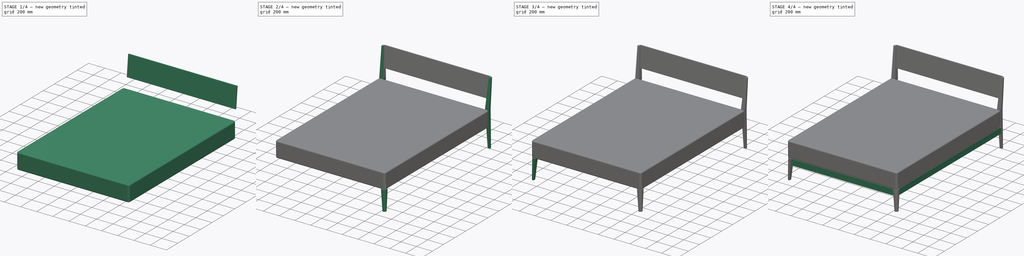
[diagram: build sequence overview — one tinted view per stage of 4, left to right]
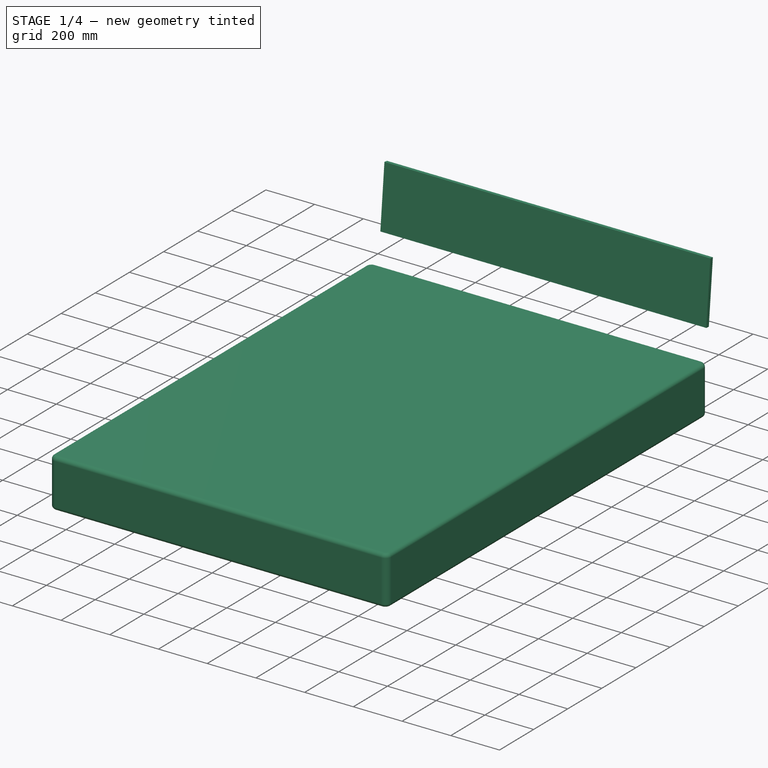
[diagram: stage 1 of 4 — iso view after this stage's code; geometry added in this stage tinted green]
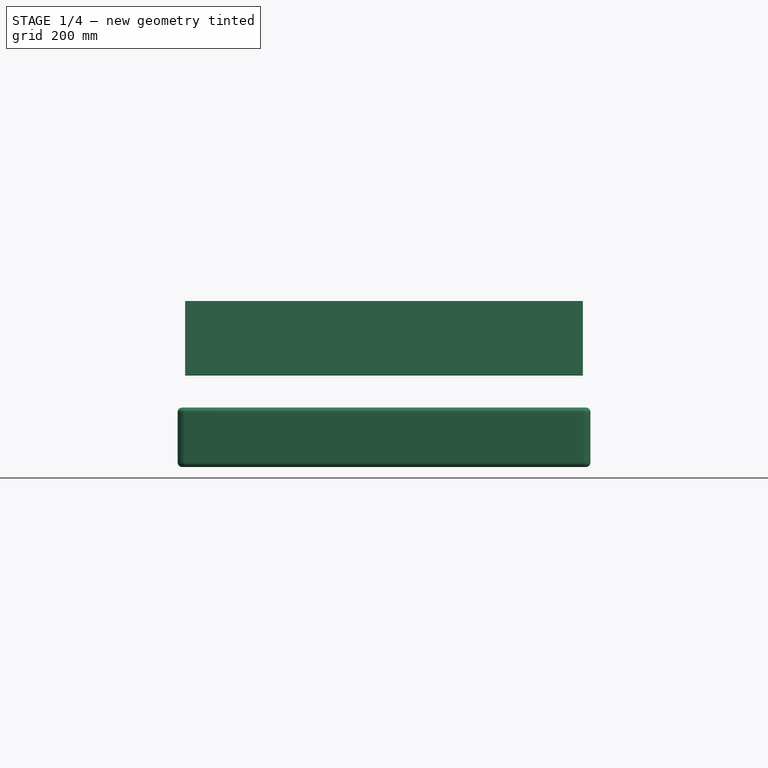
[diagram: stage 1 of 4 — front view after this stage's code; geometry added in this stage tinted green]
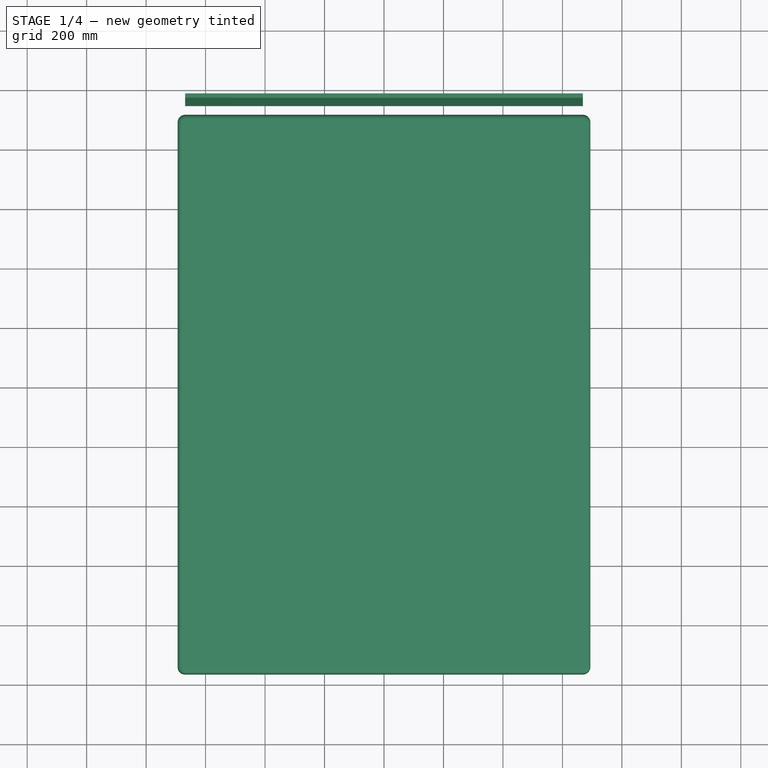
[diagram: stage 1 of 4 — top view after this stage's code; geometry added in this stage tinted green]
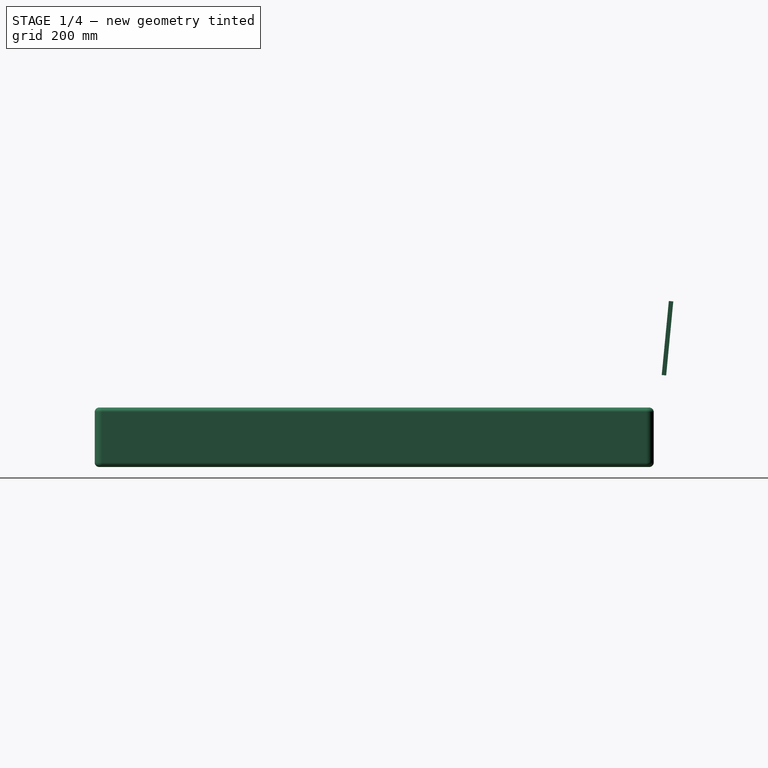
[diagram: stage 1 of 4 — right view after this stage's code; geometry added in this stage tinted green]
FCSTD DOCUMENT  (FreeCAD 1.0R38641 +468 (Git))
Label: Beds_R02
License: All rights reserved
LicenseURL: https://en.wikipedia.org/wiki/All_rights_reserved
objects: Sketcher::SketchObject×15, App::DocumentObjectGroup×15, App::MaterialObjectPython×9, App::FeaturePython×5, Part::Extrusion×4, Part::Loft×4, App::TextDocument×4, Part::Compound×2, Part::Part2DObjectPython×2, Spreadsheet::Sheet×1, App::VarSet×1, Part::Fillet×1, App::DocumentObjectGroupPython×1
note: 48 computed .brp shape members not serialized (recipe doc carries the construction recipe); baked Part::Feature solids carry a one-line shape summary decoded from their .brp

FEATURE [Sketcher::SketchObject] Sketch022  label="Double bed_move_rotate_#_"
  ArcFitTolerance = 0
  FullyConstrained = true
  MakeInternals = false
  expr: .Constraints.Length = VarSet.Base_dimensions_B_Length
  expr: .Constraints.Width = VarSet.Base_dimensions_B_Width
  expr: Label = VarSet.A_Component_Label + <<_move_rotate_#_>>
  sketch-geometry (12):
    g0: LineSegment StartX=-694 StartY=965 StartZ=0 EndX=694 EndY=965 EndZ=0
    g1: LineSegment StartX=694 StartY=965 StartZ=0 EndX=694 EndY=-965 EndZ=0
    g2: LineSegment StartX=694 StartY=-965 StartZ=0 EndX=-694 EndY=-965 EndZ=0
    g3: LineSegment StartX=-694 StartY=-965 StartZ=0 EndX=-694 EndY=965 EndZ=0
    g4: LineSegment [constr] StartX=-794 StartY=1065 StartZ=0 EndX=794 EndY=1065 EndZ=0
    g5: LineSegment [constr] StartX=794 StartY=1065 StartZ=0 EndX=794 EndY=-1065 EndZ=0
    g6: LineSegment [constr] StartX=794 StartY=-1065 StartZ=0 EndX=-794 EndY=-1065 EndZ=0
    g7: LineSegment [constr] StartX=-794 StartY=-1065 StartZ=0 EndX=-794 EndY=1065 EndZ=0
    g8: LineSegment StartX=-794 StartY=0 StartZ=0 EndX=794 EndY=0 EndZ=0
    g9: LineSegment StartX=0 StartY=1065 StartZ=0 EndX=0 EndY=-1065 EndZ=0
    g10: Circle CenterX=0 CenterY=0 CenterZ=0 NormalX=0 NormalY=0 NormalZ=1 AngleXU=0 Radius=50
    g11: LineSegment StartX=-694 StartY=915 StartZ=0 EndX=694 EndY=915 EndZ=0
  constraints (34):
    c: Coincident(g0,g1)
    c: Coincident(g1,g2)
    c: Coincident(g2,g3)
    c: Coincident(g3,g0)
    c: Horizontal(g2)
    c: Vertical(g1)
    c: DistanceX(g2,g2) = 1388  'Width'
    c: DistanceY(g3,g3) = 1930  'Length'
    c: Symmetric(g0,g0,g-2)
    c: Symmetric(g0,g2,g-1)
    c: Coincident(g4,g5)
    c: Coincident(g5,g6)
    c: Coincident(g6,g7)
    c: Coincident(g7,g4)
    c: Horizontal(g6)
    c: Vertical(g7)
    c: Symmetric(g4,g5,g-1)
    c: Symmetric(g4,g4,g-2)
    c: DistanceY(g0,g4) = 100
    c: DistanceX(g0,g4) = 100
    c: PointOnObject(g8,g7)
    c: PointOnObject(g8,g5)
    c: Horizontal(g8)
    c: PointOnObject(g9,g4)
    c: PointOnObject(g9,g6)
    c: Vertical(g9)
    c: PointOnObject(g8,g-1)
    c: PointOnObject(g9,g-2)
    c: Coincident(g10,g-1)
    c: Diameter(g10) = 100
    c: PointOnObject(g11,g3)
    c: PointOnObject(g11,g1)
    c: Horizontal(g11)
    c: DistanceY(g11,g0) = 50
FEATURE [Spreadsheet::Sheet] Spreadsheet003  label="Double bed_description_quantities_#_"
  cells = A1='Description:; A2==<<%s>> % VarSet.A_Component_Label + << of %s x %s x %s>> % tuple(VarSet.Base_dimensions_B_Length; VarSet.Base_dimensions_B_Width; VarSet.Mattress_B_Height_floor) + << in length, width and height, compound of mattress of %s>> % VarSet.Mattress_C_Material.Label + <<, headboard of %s>> % VarSet.Headboard_C_Material.Label + << and feet of %s>> % VarSet.Feet_C_Material.Label + <<.>>; A4='Parts; B4='L; C4='H; D4='W; E4='T; F4='A; G4='Materials; H4='Quantities; A5='01-Mattress; B5==VarSet.Base_dimensions_B_Length - 50 mm; D5==VarSet.Base_dimensions_B_Width; E5==VarSet.Mattress_B_Thickness; F5==Extrude039021.Area; G5==VarSet.Mattress_C_Material.Label; H5=1; A6='02-Headboard; C6==VarSet.Headboard_B_Height; D6==VarSet.Base_dimensions_B_Width - 80 mm; E6==Sketch.Constraints.Thickness; F6==Extrude.Area; G6==VarSet.Headboard_C_Material.Label; H6=1; A7='03-Foot frames; B7==(VarSet.Base_dimensions_B_Width - 60 mm) * 2 + (VarSet.Base_dimensions_B_Length - 60 mm) * 2; C7==Sketch259.Constraints.Height_01; E7==Sketch259.Constraints.Thickness_01; G7==VarSet.Foot_frames_C_Material.Label; H7=4; A8='04-Feet; C8==VarSet.Mattress_B_Height_floor - VarSet.Mattress_B_Thickness; E8==<<from %s>> % Sketch257.Constraints.Thickness + << to %s>> % Sketch258.Constraints.Thickness; G8==VarSet.Feet_C_Material.Label; H8=4
  expr: Label = VarSet.A_Component_Label + <<_description_quantities_#_>>
FEATURE [Sketcher::SketchObject] Sketch255  label="Sketch032_Bottom_panel"
  ArcFitTolerance = 0
  AttachmentSupport = -> [Sketch022]
  ExternalGeometry = -> [Sketch022]
  FullyConstrained = true
  MakeInternals = false
  MapMode = 2
  expr: .Constraints.Radius = VarSet.Mattress_B_Radius_fillet
  sketch-geometry (8):
    g0: LineSegment StartX=694 StartY=890 StartZ=0 EndX=694 EndY=-940 EndZ=0
    g1: LineSegment StartX=669 StartY=-965 StartZ=0 EndX=-669 EndY=-965 EndZ=0
    g2: LineSegment StartX=-694 StartY=-940 StartZ=0 EndX=-694 EndY=890 EndZ=0
    g3: ArcOfCircle CenterX=-669 CenterY=-940 CenterZ=0 NormalX=0 NormalY=0 NormalZ=1 AngleXU=0 Radius=25 StartAngle=3.14159 EndAngle=4.71239
    g4: ArcOfCircle CenterX=669 CenterY=-940 CenterZ=0 NormalX=0 NormalY=0 NormalZ=1 AngleXU=0 Radius=25 StartAngle=4.71239 EndAngle=6.28319
    g5: LineSegment StartX=-669 StartY=915 StartZ=0 EndX=669 EndY=915 EndZ=0
    g6: ArcOfCircle CenterX=-669 CenterY=890 CenterZ=0 NormalX=0 NormalY=0 NormalZ=1 AngleXU=0 Radius=25 StartAngle=1.5708 EndAngle=3.14159
    g7: ArcOfCircle CenterX=669 CenterY=890 CenterZ=0 NormalX=0 NormalY=0 NormalZ=1 AngleXU=0 Radius=25 StartAngle=-2.7e-15 EndAngle=1.5708
  constraints (20):
    c: Horizontal(g1)
    c: Vertical(g0)
    c: Vertical(g2)
    c: Tangent(g2,g3) = 1.5708
    c: Tangent(g1,g3) = 1.5708
    c: Tangent(g1,g4) = 1.5708
    c: Tangent(g0,g4) = 1.5708
    c: PointOnObject(g0,g-4)
    c: Horizontal(g1,g-4)
    c: Radius(g4) = 25  'Radius'
    c: Equal(g3,g4)
    c: Horizontal(g5)
    c: Tangent(g2,g6) = 1.5708
    c: Tangent(g5,g6) = 1.5708
    c: Tangent(g5,g7) = 1.5708
    c: Tangent(g0,g7) = 1.5708
    c: Equal(g6,g7)
    c: Equal(g7,g4)
    c: PointOnObject(g2,g-3)
    c: DistanceY(g5,g-4) = 50
FEATURE [Part::Extrusion] Extrude039021  label="01-Seat_"
  Area = 2.6089e+06
  Base = -> Sketch255
  Dir = (0,0,1)
  DirMode = 2
  FaceMakerClass = Part::FaceMakerBullseye
  FaceMakerMode = 3
  LengthFwd = 200
  LengthRev = 0
  Placement = pos=(0,0,250) rot=(0,0,1;0rad)
  Solid = true
  Symmetric = false
  expr: .Placement.Base.z = VarSet.Mattress_B_Height_floor - VarSet.Mattress_B_Thickness
  expr: Area = .Shape.Face9.Area
  expr: LengthFwd = VarSet.Mattress_B_Thickness <= VarSet.Mattress_B_Radius_fillet ? VarSet.Mattress_B_Radius_fillet : VarSet.Mattress_B_Thickness
FEATURE [App::MaterialObjectPython] Material051  label="white ceramic generic"  # material (typed FeaturePython)
  Description = A standard ceramic
  Material = AuthorAndLicense=(c) 2015 Bernd Hahnebach (CC-BY 3.0); CardName=Wood-Generic; Color=(0.8, 0.8, 0.8, 1.0); Density=700 kg/m^3; Description=A standard ceramic; DiffuseColor=(1.0, 1.0, 1.0); Father=Aggregate; Name=white ceramic generic; PoissonRatio=0.05; ProductURL=https://en.wikipedia.org/wiki/Wood; SectionColor=(0.8, 0.8, 0.8, 1.0); Transparency=0; ViewColor=(0.8, 0.8, 0.8, 1.0); YoungsModulus=12000 MPa
  Transparency = 0
FEATURE [App::DocumentObjectGroup] Group303  label="Ceramic_"
  Group = -> [Material051]
FEATURE [App::MaterialObjectPython] Material054  label="black granit generic"  # material (typed FeaturePython)
  Material = AuthorAndLicense=Uwe Stöhr; CardName=Iron-Generic; Color=(0.8, 0.8, 0.8, 1.0); Density=7874 kg/m^3; DiffuseColor=(0.10196078568696976, 0.10196078568696976, 0.10196078568696976); ElectricalConductivity=10.3 MS/m; Father=Metal; KindOfMaterial=Iron; Name=black granit generic; PoissonRatio=0.29; RelativePermeability=5000.0; SectionColor=(0.8, 0.8, 0.8, 1.0); ShearModulus=82.0 GPa; SpecificHeat=460.5 J/kg/K; ThermalConductivity=80.4 W/m/K; ThermalExpansionCoefficient=11.8 µm/m/K; Transparency=0; UltimateTensileStrength=497 MPa; ViewColor=(0.8, 0.8, 0.8, 1.0); YieldStrength=428 MPa; YoungsModulus=211 GPa
  Transparency = 0
FEATURE [App::MaterialObjectPython] Material055  label="white Formica generic"  # material (typed FeaturePython)
  Description = A standard ceramic
  Material = AuthorAndLicense=(c) 2015 Bernd Hahnebach (CC-BY 3.0); CardName=Wood-Generic; Color=(0.8, 0.8, 0.8, 1.0); Density=700 kg/m^3; Description=A standard ceramic; DiffuseColor=(1.0, 1.0, 1.0); Father=Aggregate; Name=white Formica generic; PoissonRatio=0.05; ProductURL=https://en.wikipedia.org/wiki/Wood; SectionColor=(0.8, 0.8, 0.8, 1.0); Transparency=0; ViewColor=(0.8, 0.8, 0.8, 1.0); YoungsModulus=12000 MPa
  ProductURL = https://en.wikipedia.org/wiki/Wood
  Transparency = 0
FEATURE [Part::Extrusion] Extrude  label="02-Headboard_"
  Area = 334500
  Base = -> Sketch
  Dir = (0,0.0958458,0.995396)
  DirMode = 2
  FaceMakerClass = Part::FaceMakerBullseye
  FaceMakerMode = 3
  LengthFwd = 250
  LengthRev = 0
  Material = -> Material055
  Solid = true
  Symmetric = false
  expr: Area = .Shape.Face3.Area
  expr: LengthFwd = VarSet.Headboard_B_Height
  expr: Material = VarSet.Headboard_C_Material
  expr: Visibility = VarSet.Visualization_A_Visualization
FEATURE [App::DocumentObjectGroup] Group224  label="Wood_"
  Group = -> [Material053,Material055]
FEATURE [App::MaterialObjectPython] Material056  label="white marble generic_"  # material (typed FeaturePython)
  Material = AuthorAndLicense=Uwe Stöhr; CardName=Iron-Generic; Color=(0.8, 0.8, 0.8, 1.0); Density=7874 kg/m^3; DiffuseColor=(1.0, 1.0, 1.0); ElectricalConductivity=10.3 MS/m; Father=Metal; KindOfMaterial=Iron; Name=white marble generic_; PoissonRatio=0.29; RelativePermeability=5000.0; SectionColor=(0.8, 0.8, 0.8, 1.0); ShearModulus=82.0 GPa; SpecificHeat=460.5 J/kg/K; ThermalConductivity=80.4 W/m/K; ThermalExpansionCoefficient=11.8 µm/m/K; Transparency=0; UltimateTensileStrength=497 MPa; ViewColor=(0.8, 0.8, 0.8, 1.0); YieldStrength=428 MPa; YoungsModulus=211 GPa
  Transparency = 0
FEATURE [App::DocumentObjectGroup] Group302  label="Stone_"
  Group = -> [Material054,Material056]
FEATURE [App::MaterialObjectPython] Material057  label="white fabric generic"  # material (typed FeaturePython)
  Description = A standard fabric
  Material = AuthorAndLicense=(c) 2015 Bernd Hahnebach (CC-BY 3.0); CardName=Wood-Generic; Color=(0.8, 0.8, 0.8, 1.0); Density=700 kg/m^3; Description=A standard fabric; DiffuseColor=(1.0, 1.0, 1.0); Father=Aggregate; Name=white fabric generic; PoissonRatio=0.05; ProductURL=https://en.wikipedia.org/wiki/Wood; SectionColor=(0.8, 0.8, 0.8, 1.0); Transparency=0; ViewColor=(0.8, 0.8, 0.8, 1.0); YoungsModulus=12000 MPa
  Transparency = 0
FEATURE [App::VarSet] VarSet  label="01-Prop_Bed_configurations_#_"
  A_Component_Label = Double bed
  Base_dimensions_B_Length = 1930
  Base_dimensions_B_Width = 1388
  Feet_C_Material = -> Material053
  Foot_frames_B_Height = 75
  Foot_frames_B_Thickness = 20
  Foot_frames_C_Material = -> Material053
  Headboard_B_Height = 250
  Headboard_B_Support_height = 800
  Headboard_B_Thickness = 15
  Headboard_C_Material = -> Material055
  Mattress_B_Height_floor = 450
  Mattress_B_Radius_fillet = 25
  Mattress_B_Thickness = 200
  Mattress_C_Material = -> Material057
  Visualization_A_Visualization = true
FEATURE [Part::Fillet] Fillet  label="01-Mattress"
  Base = -> Extrude039021
  EdgeLinks = -> Extrude039021 [Edge3,Edge4,Edge6,Edge7,Edge9,Edge10,Edge12,Edge13,Edge15,Edge16,Edge18,Edge19,Edge21,Edge22,Edge23,Edge24]
  Edges = 16 edges r=15: [Edge3,Edge4,Edge6,Edge7,Edge9,Edge10,Edge12,Edge13,Edge15,Edge16,Edge18,Edge19,Edge21,Edge22,Edge23,Edge24]
  Material = -> Material057
  expr: Material = VarSet.Mattress_C_Material
  expr: Visibility = VarSet.Visualization_A_Visualization
FEATURE [App::DocumentObjectGroup] Group248  label="03-Component_parts_"
  Group = -> [Fillet,Extrude,Compound,Compound001]
FEATURE [App::FeaturePython] Section  label="Section_Plan_01"  # WARN: FeaturePython — macro-defined, semantics opaque (R4)
  AttacherType = Attacher::AttachEngine3D
  AttachmentOffset = pos=(0,0,1500) rot=(0,0,1;0rad)
  AttachmentSupport = -> [Sketch022]
  Clip = false
  Depth = 0
  MapMode = 2
  Objects = -> [Group248]
  OnlySolids = true
  Placement = pos=(0,0,1500) rot=(0,0,1;0rad)
  UseMaterialColorForFill = false
FEATURE [App::FeaturePython] Section002  label="Section002_Lateral_01"  # WARN: FeaturePython — macro-defined, semantics opaque (R4)
  AttacherType = Attacher::AttachEngine3D
  AttachmentOffset = pos=(0,600,1500) rot=(0,0,1;0rad)
  AttachmentSupport = -> [Sketch022]
  Clip = false
  Depth = 0
  MapMode = 4
  Objects = -> [Group248]
  OnlySolids = true
  Placement = pos=(1500,0,600) rot=(0.57735,0.57735,0.57735;2.0944rad)
  UseMaterialColorForFill = false
FEATURE [App::FeaturePython] Section003  label="Section003_Transversal"  # WARN: FeaturePython — macro-defined, semantics opaque (R4)
  AttacherType = Attacher::AttachEngine3D
  AttachmentOffset = pos=(0,600,0) rot=(0,0,1;0rad)
  AttachmentSupport = -> [Sketch022]
  Clip = false
  Depth = 0
  MapMode = 4
  Objects = -> [Group248]
  OnlySolids = true
  Placement = pos=(0,0,600) rot=(0.57735,0.57735,0.57735;2.0944rad)
  UseMaterialColorForFill = false
FEATURE [App::FeaturePython] Section004  label="Section004_Lateral_02"  # WARN: FeaturePython — macro-defined, semantics opaque (R4)
  AttacherType = Attacher::AttachEngine3D
  AttachmentOffset = pos=(0,600,1500) rot=(0,0,1;0rad)
  AttachmentSupport = -> [Sketch022]
  Clip = false
  Depth = 0
  MapMode = 4
  Objects = -> [Group248]
  OnlySolids = true
  Placement = pos=(-1500,0,600) rot=(0.57735,-0.57735,-0.57735;2.0944rad)
  UseMaterialColorForFill = false
FEATURE [App::FeaturePython] Section005  label="Section005_Frontal_"  # WARN: FeaturePython — macro-defined, semantics opaque (R4)
  AttacherType = Attacher::AttachEngine3D
  AttachmentOffset = pos=(0,600,1500) rot=(0,0,1;0rad)
  AttachmentSupport = -> [Sketch022]
  Clip = false
  Depth = 0
  MapMode = 3
  Objects = -> [Group248]
  OnlySolids = true
  Placement = pos=(0,-1500,600) rot=(1,0,0;1.5708rad)
  UseMaterialColorForFill = false
FEATURE [Part::Part2DObjectPython] Shape2DView  label="Plan_Double bed_#_"  # Draft 2D object (typed FeaturePython)
  AutoUpdate = true
  Base = -> Section
  Clip = false
  FuseArch = false
  HiddenLines = false
  InPlace = true
  OnlySolids = false
  Projection = (0,0,1)
  ProjectionMode = 0
  SegmentLength = 0.05
  Tessellation = false
  VisibleOnly = false
  expr: Label = <<Plan_>> + VarSet.A_Component_Label + <<_#_>>
FEATURE [App::DocumentObjectGroup] Group293  label="06-Drawings_2D_"
  Group = -> [Shape2DView]
FEATURE [App::DocumentObjectGroup] Group304  label="Fabric_"
  Group = -> [Material057]
FEATURE [App::DocumentObjectGroupPython] MaterialContainer  label="02-Materials"  # scripted group (container) (typed FeaturePython)
  Group = -> [Group303,Group304,Group230,Group229,Group302,Group224]
FEATURE [App::DocumentObjectGroup] Group251  label="08-Materials_bed_#_"
  Group = -> [MaterialContainer]
FEATURE [Part::Part2DObjectPython] Shape2DView001  label="Plan_Double bed"  # Draft 2D object (typed FeaturePython)
  AutoUpdate = true
  Base = -> Section
  Clip = false
  FuseArch = false
  HiddenLines = false
  InPlace = true
  OnlySolids = false
  Projection = (0.443249,-0.726152,0.52558)
  ProjectionMode = 0
  SegmentLength = 0.05
  Tessellation = false
  VisibleOnly = false
  expr: Label = <<Plan_>> + VarSet.A_Component_Label
FEATURE [App::DocumentObjectGroup] Group002  label="09-Sections_plan_#_"
  Group = -> [Section,Section002,Section003,Section004,Section005,Shape2DView001]
FEATURE [App::DocumentObjectGroup] Group286  label="Double bed_#_"
  Group = -> [VarSet,Group292,Group248,Group249,Group250,Group293,Group,Group251,Group002]
  expr: Label = VarSet.A_Component_Label + <<_#_>>
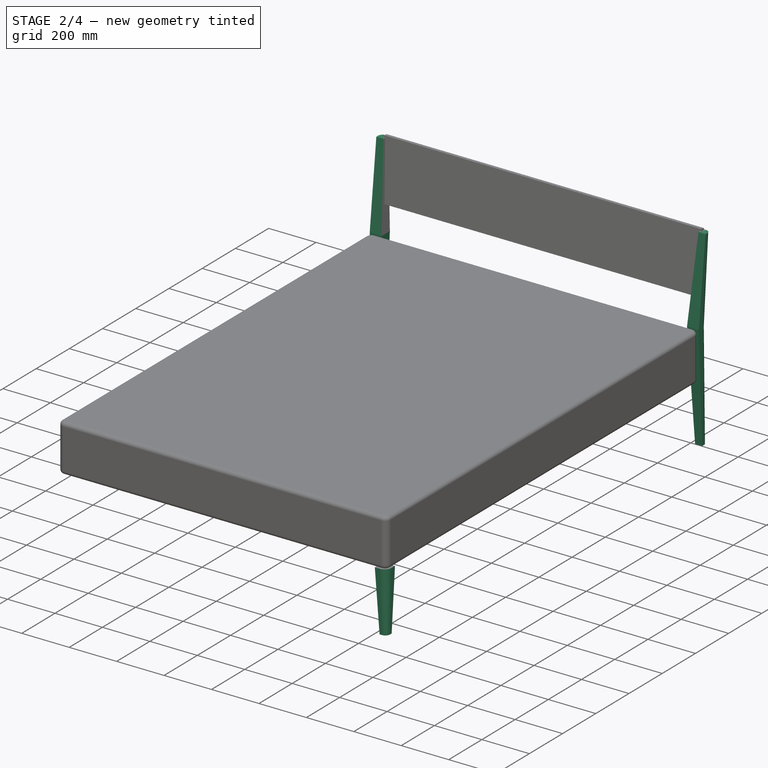
[diagram: stage 2 of 4 — iso view after this stage's code; geometry added in this stage tinted green]
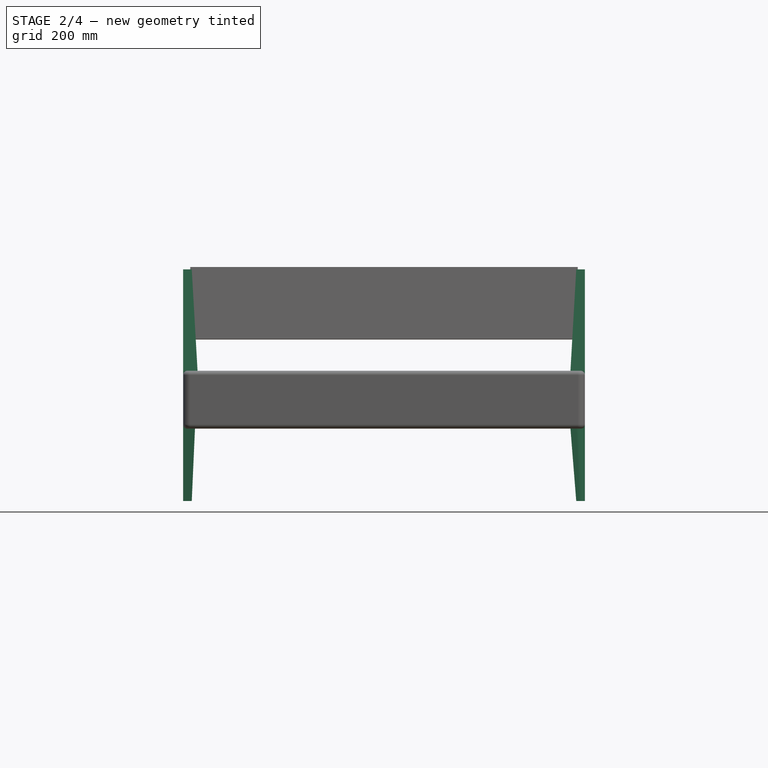
[diagram: stage 2 of 4 — front view after this stage's code; geometry added in this stage tinted green]
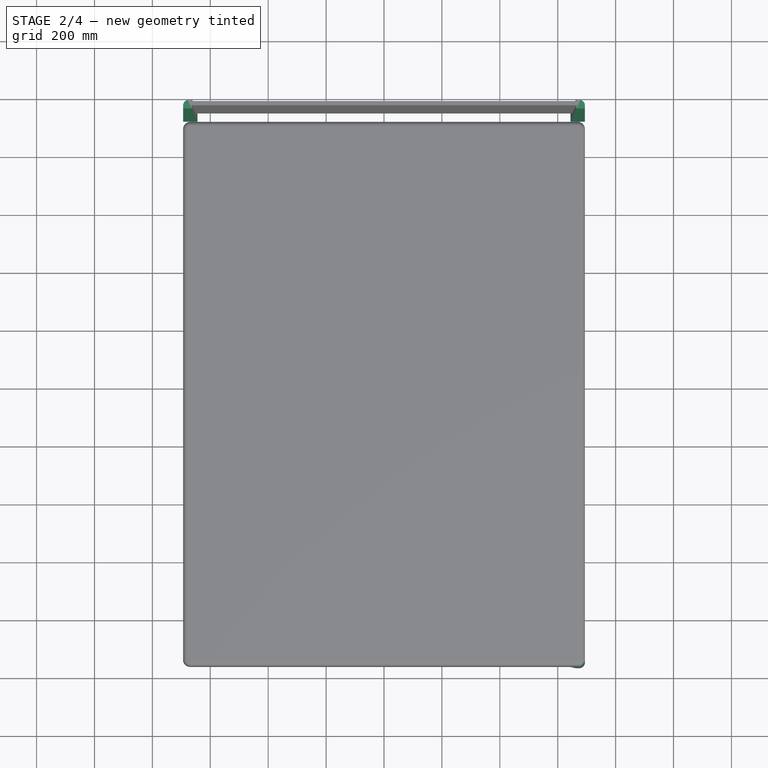
[diagram: stage 2 of 4 — top view after this stage's code; geometry added in this stage tinted green]
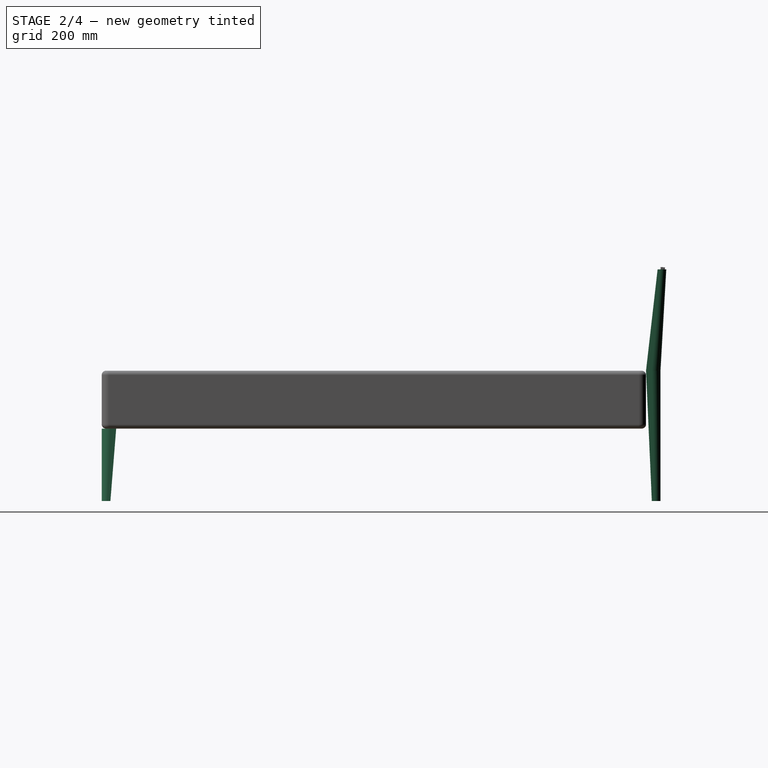
[diagram: stage 2 of 4 — right view after this stage's code; geometry added in this stage tinted green]
FEATURE [Sketcher::SketchObject] Sketch260
  ArcFitTolerance = 0
  AttachmentSupport = -> [Sketch022]
  ExternalGeometry = -> [Sketch022]
  FullyConstrained = true
  MakeInternals = false
  MapMode = 2
  sketch-geometry (5):
    g0: LineSegment StartX=-674 StartY=965 StartZ=0 EndX=-664 EndY=965 EndZ=0
    g1: LineSegment StartX=-664 StartY=965 StartZ=0 EndX=-664 EndY=935 EndZ=0
    g2: LineSegment StartX=-664 StartY=935 StartZ=0 EndX=-694 EndY=935 EndZ=0
    g3: LineSegment StartX=-694 StartY=935 StartZ=0 EndX=-694 EndY=945 EndZ=0
    g4: ArcOfCircle CenterX=-674 CenterY=945 CenterZ=0 NormalX=0 NormalY=0 NormalZ=1 AngleXU=0 Radius=20 StartAngle=1.5708 EndAngle=3.14159
  constraints (14):
    c: Coincident(g0,g1)
    c: Coincident(g1,g2)
    c: Coincident(g2,g3)
    c: Horizontal(g0)
    c: Horizontal(g2)
    c: Vertical(g1)
    c: Vertical(g3)
    c: DistanceY(g1,g1) = 30  'Thickness'
    c: Tangent(g3,g4) = 1.5708
    c: Tangent(g0,g4) = 1.5708
    c: DistanceY(g0,g-3) = 0  'Retreat_02'
    c: DistanceX(g-3,g2) = 0  'Retreat_01'
    c: DistanceX(g4,g1) = 10
    c: DistanceY(g1,g4) = 10
FEATURE [Sketcher::SketchObject] Sketch261
  ArcFitTolerance = 0
  AttachmentOffset = pos=(0,0,450) rot=(0,0,1;0rad)
  AttachmentSupport = -> [Sketch022]
  ExternalGeometry = -> [Sketch022]
  FullyConstrained = true
  MakeInternals = false
  MapMode = 2
  Placement = pos=(0,0,450) rot=(0,0,1;0rad)
  expr: .AttachmentOffset.Base.z = VarSet.Mattress_B_Height_floor
  sketch-geometry (5):
    g0: LineSegment StartX=-664 StartY=965 StartZ=0 EndX=-644 EndY=965 EndZ=0
    g1: LineSegment StartX=-644 StartY=965 StartZ=0 EndX=-644 EndY=915 EndZ=0
    g2: LineSegment StartX=-644 StartY=915 StartZ=0 EndX=-694 EndY=915 EndZ=0
    g3: LineSegment StartX=-694 StartY=915 StartZ=0 EndX=-694 EndY=935 EndZ=0
    g4: ArcOfCircle CenterX=-664 CenterY=935 CenterZ=0 NormalX=0 NormalY=0 NormalZ=1 AngleXU=0 Radius=30 StartAngle=1.5708 EndAngle=3.14159
  constraints (14):
    c: Coincident(g0,g1)
    c: Coincident(g1,g2)
    c: Coincident(g2,g3)
    c: Horizontal(g0)
    c: Horizontal(g2)
    c: Vertical(g1)
    c: Vertical(g3)
    c: DistanceY(g1,g1) = 50  'Tickness'
    c: Tangent(g3,g4) = 1.5708
    c: Tangent(g0,g4) = 1.5708
    c: DistanceX(g-3,g2) = 0  'Retreat_01'
    c: DistanceY(g0,g-3) = 0  'Retreat_02'
    c: DistanceX(g4,g1) = 20
    c: DistanceY(g1,g4) = 20
FEATURE [Sketcher::SketchObject] Sketch262
  ArcFitTolerance = 0
  AttachmentSupport = -> [Sketch022]
  ExternalGeometry = -> [Sketch022]
  FullyConstrained = true
  MakeInternals = false
  MapMode = 2
  sketch-geometry (5):
    g0: LineSegment StartX=664 StartY=-935 StartZ=0 EndX=694 EndY=-935 EndZ=0
    g1: LineSegment StartX=694 StartY=-935 StartZ=0 EndX=694 EndY=-945 EndZ=0
    g2: LineSegment StartX=674 StartY=-965 StartZ=0 EndX=664 EndY=-965 EndZ=0
    g3: LineSegment StartX=664 StartY=-965 StartZ=0 EndX=664 EndY=-935 EndZ=0
    g4: ArcOfCircle CenterX=674 CenterY=-945 CenterZ=0 NormalX=0 NormalY=0 NormalZ=1 AngleXU=0 Radius=20 StartAngle=4.71239 EndAngle=6.28319
  constraints (14):
    c: Coincident(g0,g1)
    c: Coincident(g2,g3)
    c: Coincident(g3,g0)
    c: Horizontal(g0)
    c: Horizontal(g2)
    c: Vertical(g1)
    c: Vertical(g3)
    c: DistanceX(g0,g0) = 30  'Thickness'
    c: Tangent(g1,g4) = 1.5708
    c: Tangent(g2,g4) = 1.5708
    c: DistanceX(g0,g-4) = 0  'Retreat_01'
    c: DistanceY(g-4,g2) = 0  'Retreat_02'
    c: DistanceX(g0,g4) = 10
    c: DistanceY(g4,g0) = 10
FEATURE [Sketcher::SketchObject] Sketch263
  ArcFitTolerance = 0
  AttachmentOffset = pos=(0,0,250) rot=(0,0,1;0rad)
  AttachmentSupport = -> [Sketch022]
  ExternalGeometry = -> [Sketch022]
  FullyConstrained = true
  MakeInternals = false
  MapMode = 2
  Placement = pos=(0,0,250) rot=(0,0,1;0rad)
  expr: .AttachmentOffset.Base.z = VarSet.Mattress_B_Height_floor - VarSet.Mattress_B_Thickness
  sketch-geometry (5):
    g0: LineSegment StartX=644 StartY=-915 StartZ=0 EndX=694 EndY=-915 EndZ=0
    g1: LineSegment StartX=694 StartY=-915 StartZ=0 EndX=694 EndY=-935 EndZ=0
    g2: LineSegment StartX=664 StartY=-965 StartZ=0 EndX=644 EndY=-965 EndZ=0
    g3: LineSegment StartX=644 StartY=-965 StartZ=0 EndX=644 EndY=-915 EndZ=0
    g4: ArcOfCircle CenterX=664 CenterY=-935 CenterZ=0 NormalX=0 NormalY=0 NormalZ=1 AngleXU=0 Radius=30 StartAngle=4.71239 EndAngle=6.28319
  constraints (14):
    c: Coincident(g0,g1)
    c: Coincident(g2,g3)
    c: Coincident(g3,g0)
    c: Horizontal(g0)
    c: Horizontal(g2)
    c: Vertical(g1)
    c: Vertical(g3)
    c: DistanceX(g0,g0) = 50  'Thickness'
    c: Tangent(g2,g4) = 1.5708
    c: Tangent(g1,g4) = 1.5708
    c: DistanceY(g-4,g2) = 0  'Retreat_02'
    c: DistanceX(g0,g-4) = 0  'Retreat_01'
    c: DistanceX(g0,g4) = 20
    c: DistanceY(g4,g0) = 20
FEATURE [Part::Loft] Loft002  label="Foot_03_"
  Closed = false
  MaxDegree = 5
  Ruled = true
  Sections = -> [Sketch262,Sketch263]
  Solid = true
FEATURE [App::DocumentObjectGroup] Group292  label="02-Elements_to_move_rotate"
  Group = -> [Sketch022]
FEATURE [App::DocumentObjectGroup] Group249  label="04-Spreadsheet_"
  Group = -> [Spreadsheet003]
FEATURE [App::TextDocument] Text_document002  label="Bed_file_configurations_"
  Text = <blob: 3151 chars omitted>
FEATURE [App::TextDocument] Text_document003  label="Guidelines_new_objects_properties_"
  Text = <blob: 3302 chars omitted>
FEATURE [App::DocumentObjectGroup] Group250  label="05-Guidelines_"
  Group = -> [Text_document002,Text_document003]
FEATURE [Sketcher::SketchObject] Sketch267
  ArcFitTolerance = 0
  AttachmentOffset = pos=(0,0,800) rot=(0,0,1;0rad)
  AttachmentSupport = -> [Sketch022]
  ExternalGeometry = -> [Sketch022]
  FullyConstrained = true
  MakeInternals = false
  MapMode = 2
  Placement = pos=(0,0,800) rot=(0,0,1;0rad)
  expr: .AttachmentOffset.Base.z = VarSet.Headboard_B_Support_height
  sketch-geometry (5):
    g0: LineSegment StartX=-674 StartY=985 StartZ=0 EndX=-664 EndY=985 EndZ=0
    g1: LineSegment StartX=-664 StartY=985 StartZ=0 EndX=-664 EndY=955 EndZ=0
    g2: LineSegment StartX=-664 StartY=955 StartZ=0 EndX=-694 EndY=955 EndZ=0
    g3: LineSegment StartX=-694 StartY=955 StartZ=0 EndX=-694 EndY=965 EndZ=0
    g4: ArcOfCircle CenterX=-674 CenterY=965 CenterZ=0 NormalX=0 NormalY=0 NormalZ=1 AngleXU=0 Radius=20 StartAngle=1.5708 EndAngle=3.14159
  constraints (14):
    c: Coincident(g0,g1)
    c: Coincident(g1,g2)
    c: Coincident(g2,g3)
    c: Horizontal(g0)
    c: Horizontal(g2)
    c: Vertical(g1)
    c: Vertical(g3)
    c: DistanceY(g1,g1) = 30  'Thickness'
    c: Tangent(g3,g4) = 1.5708
    c: Tangent(g0,g4) = 1.5708
    c: DistanceX(g-3,g2) = 0  'Retreat_01'
    c: DistanceX(g4,g1) = 10
    c: DistanceY(g1,g4) = 10
    c: DistanceY(g-3,g0) = 20  'Retreat_02'
FEATURE [Sketcher::SketchObject] Sketch268
  ArcFitTolerance = 0
  AttachmentOffset = pos=(0,0,800) rot=(0,0,1;0rad)
  AttachmentSupport = -> [Sketch022]
  ExternalGeometry = -> [Sketch022]
  FullyConstrained = true
  MakeInternals = false
  MapMode = 2
  Placement = pos=(0,0,800) rot=(0,0,1;0rad)
  expr: .AttachmentOffset.Base.z = VarSet.Headboard_B_Support_height
  sketch-geometry (5):
    g0: LineSegment StartX=664 StartY=985 StartZ=0 EndX=674 EndY=985 EndZ=0
    g1: LineSegment StartX=694 StartY=965 StartZ=0 EndX=694 EndY=955 EndZ=0
    g2: LineSegment StartX=694 StartY=955 StartZ=0 EndX=664 EndY=955 EndZ=0
    g3: LineSegment StartX=664 StartY=955 StartZ=0 EndX=664 EndY=985 EndZ=0
    g4: ArcOfCircle CenterX=674 CenterY=965 CenterZ=0 NormalX=0 NormalY=0 NormalZ=1 AngleXU=0 Radius=20 StartAngle=1.1e-15 EndAngle=1.5708
  constraints (14):
    c: Coincident(g1,g2)
    c: Coincident(g2,g3)
    c: Coincident(g3,g0)
    c: Horizontal(g0)
    c: Horizontal(g2)
    c: Vertical(g1)
    c: Vertical(g3)
    c: Tangent(g0,g4) = 1.5708
    c: Tangent(g1,g4) = 1.5708
    c: DistanceX(g2,g2) = 30  'Thickness'
    c: DistanceX(g1,g-4) = 0  'Retreat_01'
    c: DistanceX(g2,g4) = 10
    c: DistanceY(g2,g4) = 10
    c: DistanceY(g-4,g0) = 20  'Retreat_02'
FEATURE [Part::Loft] Loft004  label="Loft004_foot_backrest_"
  Closed = false
  MaxDegree = 5
  Ruled = true
  Sections = -> [Sketch264,Sketch265,Sketch268]
  Solid = true
FEATURE [Part::Loft] Loft005  label="Loft005_foot_backrest_"
  Closed = false
  MaxDegree = 5
  Ruled = true
  Sections = -> [Sketch260,Sketch261,Sketch267]
  Solid = true
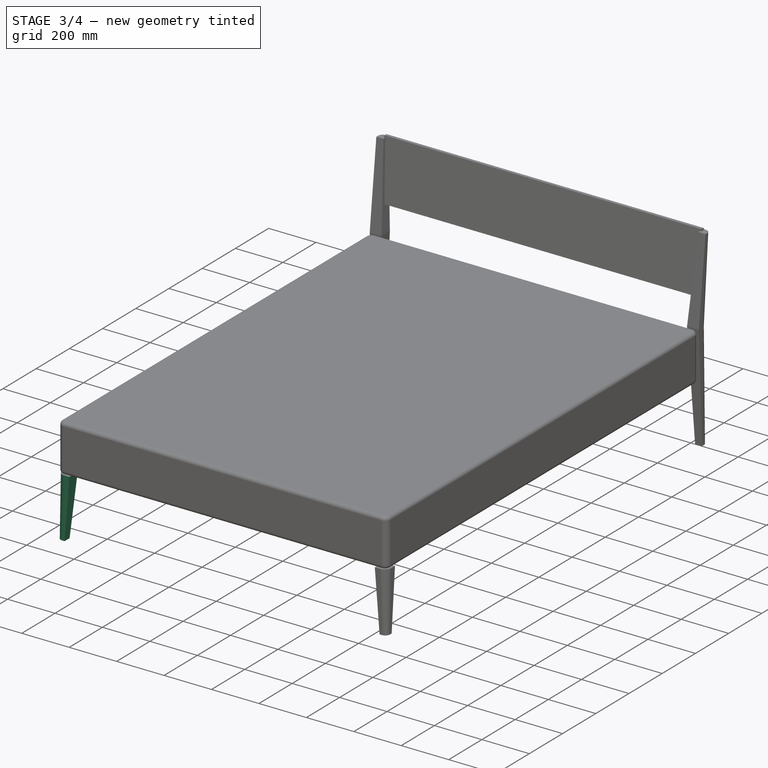
[diagram: stage 3 of 4 — iso view after this stage's code; geometry added in this stage tinted green]
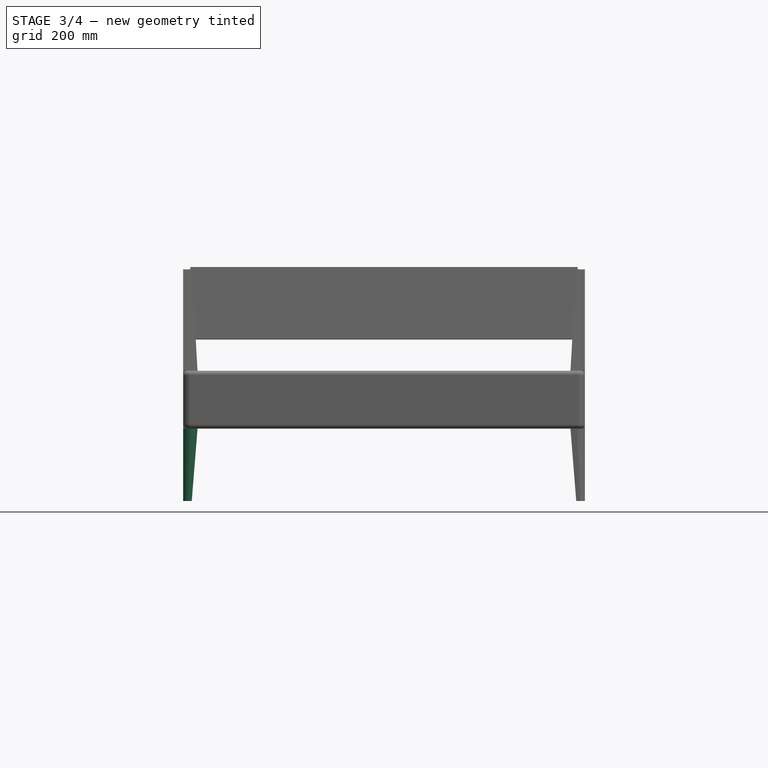
[diagram: stage 3 of 4 — front view after this stage's code; geometry added in this stage tinted green]
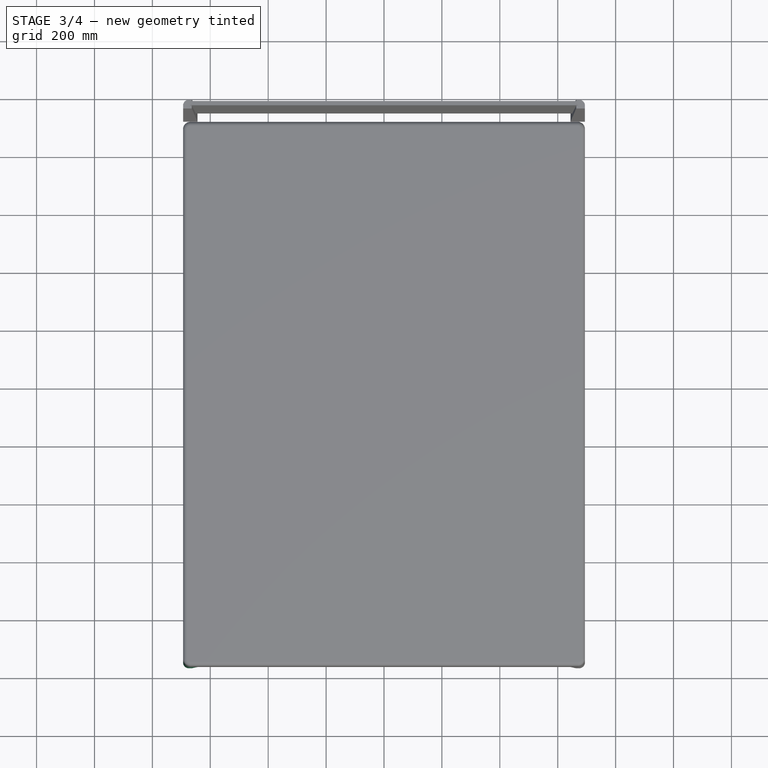
[diagram: stage 3 of 4 — top view after this stage's code; geometry added in this stage tinted green]
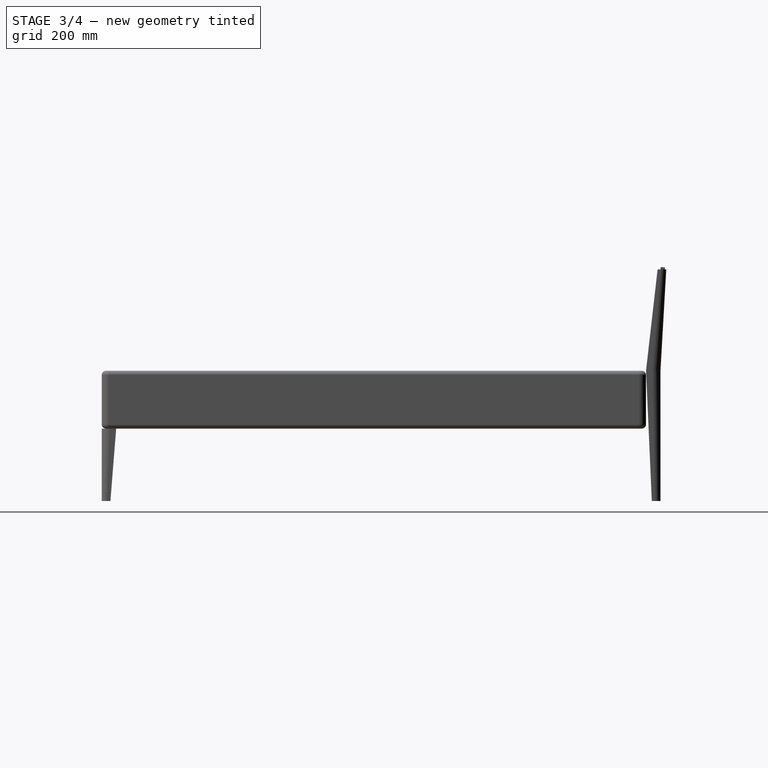
[diagram: stage 3 of 4 — right view after this stage's code; geometry added in this stage tinted green]
FEATURE [Sketcher::SketchObject] Sketch257
  ArcFitTolerance = 0
  AttachmentSupport = -> [Sketch022]
  ExternalGeometry = -> [Sketch022]
  FullyConstrained = true
  MakeInternals = false
  MapMode = 2
  sketch-geometry (5):
    g0: LineSegment StartX=-694 StartY=-935 StartZ=0 EndX=-664 EndY=-935 EndZ=0
    g1: LineSegment StartX=-664 StartY=-935 StartZ=0 EndX=-664 EndY=-965 EndZ=0
    g2: LineSegment StartX=-664 StartY=-965 StartZ=0 EndX=-674 EndY=-965 EndZ=0
    g3: LineSegment StartX=-694 StartY=-945 StartZ=0 EndX=-694 EndY=-935 EndZ=0
    g4: ArcOfCircle CenterX=-674 CenterY=-945 CenterZ=0 NormalX=0 NormalY=0 NormalZ=1 AngleXU=0 Radius=20 StartAngle=3.14159 EndAngle=4.71239
  constraints (14):
    c: Coincident(g0,g1)
    c: Coincident(g1,g2)
    c: Coincident(g3,g0)
    c: Horizontal(g0)
    c: Horizontal(g2)
    c: Vertical(g1)
    c: Vertical(g3)
    c: Tangent(g3,g4) = 1.5708
    c: Tangent(g2,g4) = 1.5708
    c: DistanceX(g0,g0) = 30  'Thickness'
    c: DistanceX(g-3,g0) = 0  'Retreat_01'
    c: DistanceY(g-3,g1) = 0  'Retreat_02'
    c: DistanceY(g4,g0) = 10
    c: DistanceX(g4,g0) = 10
FEATURE [Sketcher::SketchObject] Sketch258
  ArcFitTolerance = 0
  AttachmentOffset = pos=(0,0,250) rot=(0,0,1;0rad)
  AttachmentSupport = -> [Sketch022]
  ExternalGeometry = -> [Sketch022]
  FullyConstrained = true
  MakeInternals = false
  MapMode = 2
  Placement = pos=(0,0,250) rot=(0,0,1;0rad)
  expr: .AttachmentOffset.Base.z = VarSet.Mattress_B_Height_floor - VarSet.Mattress_B_Thickness
  sketch-geometry (5):
    g0: LineSegment StartX=-694 StartY=-915 StartZ=0 EndX=-644 EndY=-915 EndZ=0
    g1: LineSegment StartX=-644 StartY=-915 StartZ=0 EndX=-644 EndY=-965 EndZ=0
    g2: LineSegment StartX=-644 StartY=-965 StartZ=0 EndX=-664 EndY=-965 EndZ=0
    g3: LineSegment StartX=-694 StartY=-935 StartZ=0 EndX=-694 EndY=-915 EndZ=0
    g4: ArcOfCircle CenterX=-664 CenterY=-935 CenterZ=0 NormalX=0 NormalY=0 NormalZ=1 AngleXU=0 Radius=30 StartAngle=3.14159 EndAngle=4.71239
  constraints (14):
    c: Coincident(g0,g1)
    c: Coincident(g1,g2)
    c: Coincident(g3,g0)
    c: Horizontal(g0)
    c: Horizontal(g2)
    c: Vertical(g1)
    c: Vertical(g3)
    c: DistanceX(g0,g0) = 50  'Thickness'
    c: Tangent(g2,g4) = 1.5708
    c: Tangent(g3,g4) = 1.5708
    c: DistanceX(g-3,g0) = 0  'Retreat_01'
    c: DistanceY(g-3,g1) = 0  'Retreat_02'
    c: DistanceX(g4,g0) = 20
    c: DistanceY(g4,g0) = 20
FEATURE [Part::Loft] Loft  label="Foot_01_"
  Closed = false
  MaxDegree = 5
  Ruled = true
  Sections = -> [Sketch257,Sketch258]
  Solid = true
FEATURE [Part::Compound] Compound001  label="04-Feet_headboard_"
  Links = -> [Loft,Loft002,Loft004,Loft005]
  Material = -> Material053
  expr: Material = VarSet.Feet_C_Material
  expr: Visibility = VarSet.Visualization_A_Visualization
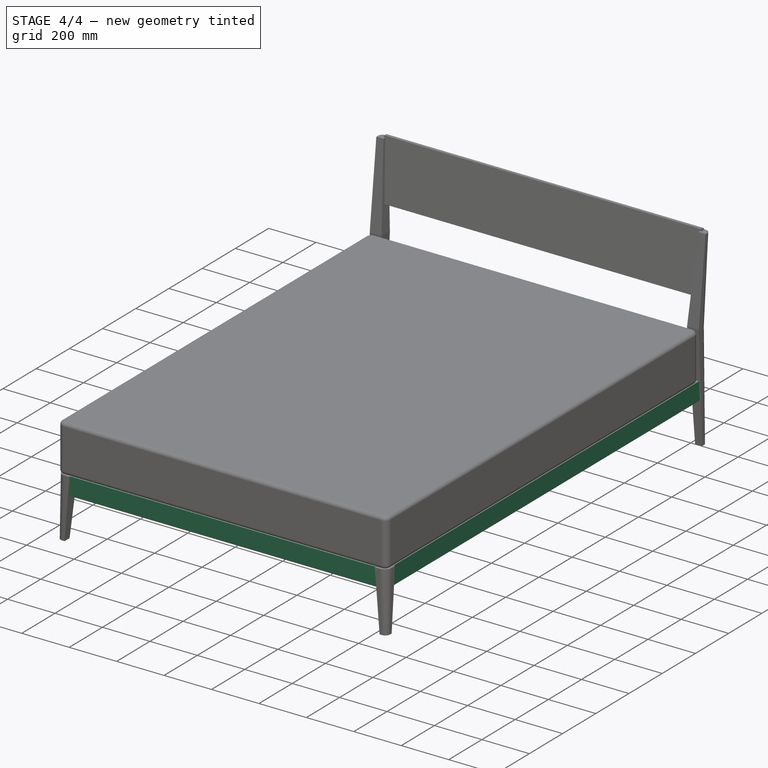
[diagram: stage 4 of 4 — iso view after this stage's code; geometry added in this stage tinted green]
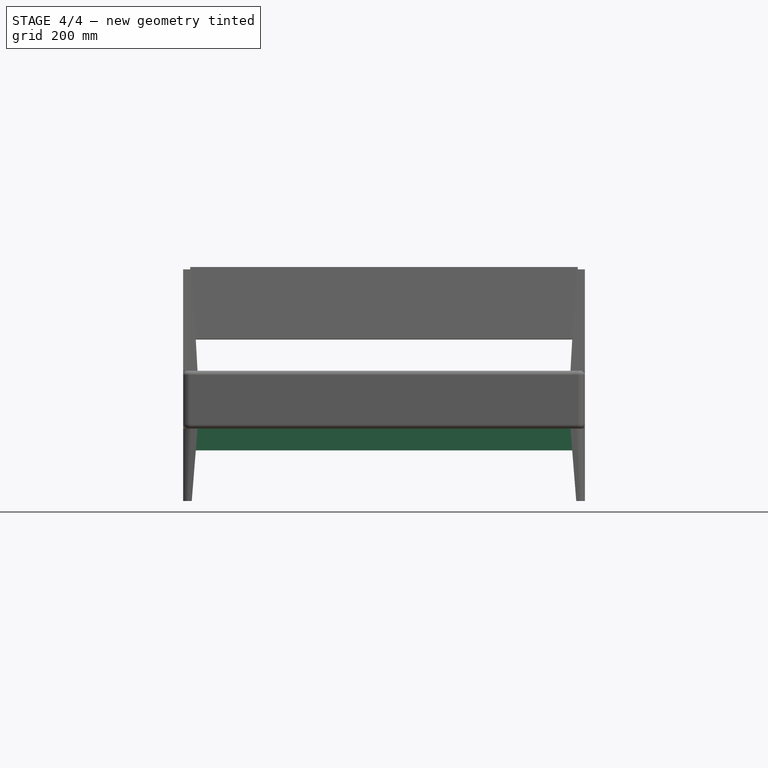
[diagram: stage 4 of 4 — front view after this stage's code; geometry added in this stage tinted green]
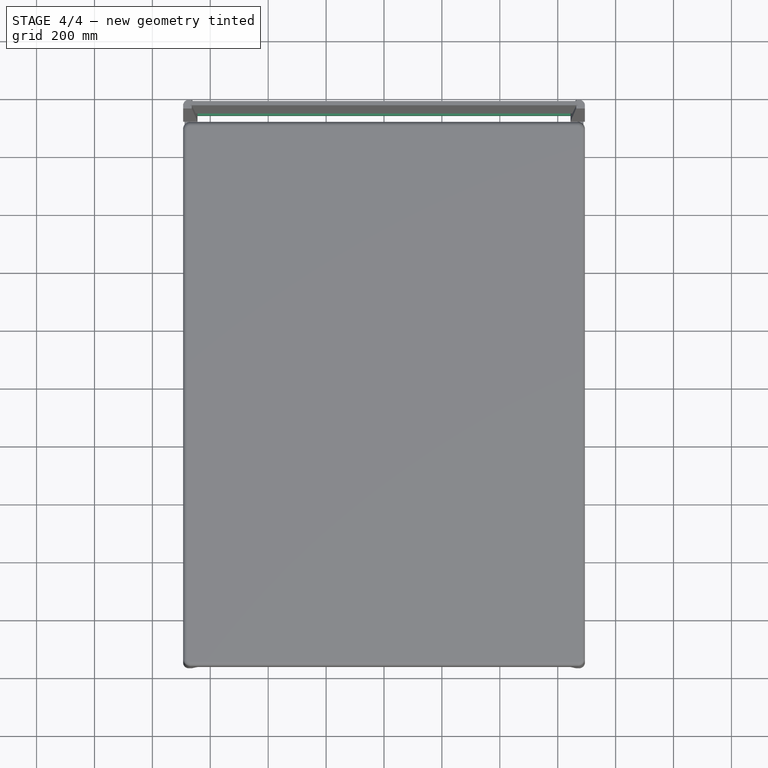
[diagram: stage 4 of 4 — top view after this stage's code; geometry added in this stage tinted green]
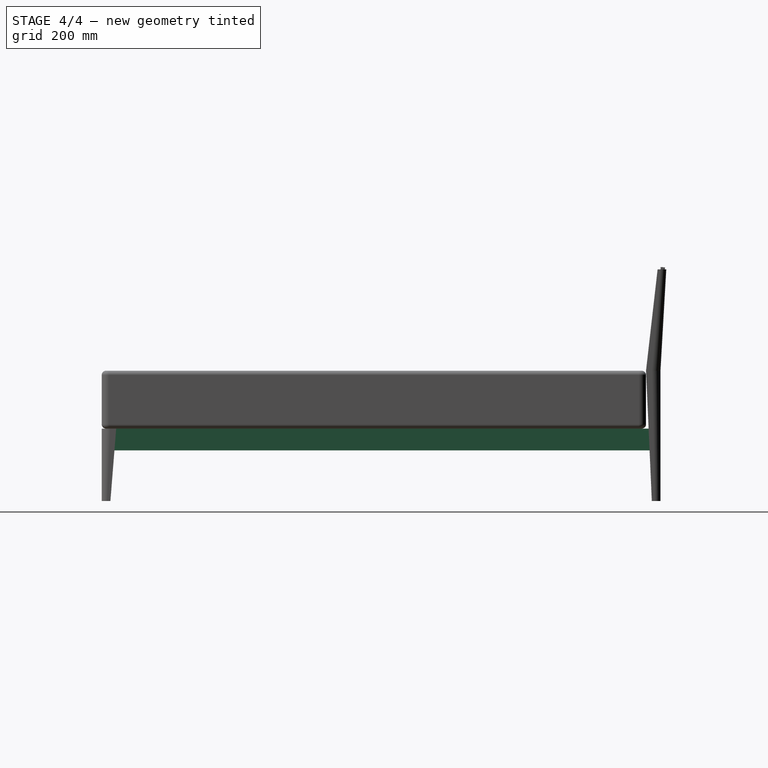
[diagram: stage 4 of 4 — right view after this stage's code; geometry added in this stage tinted green]
FEATURE [Sketcher::SketchObject] Sketch259
  ArcFitTolerance = 0
  AttachmentOffset = pos=(0,0,-664) rot=(0,0,1;0rad)
  AttachmentSupport = -> [Sketch022]
  ExternalGeometry = -> [Sketch022]
  FullyConstrained = true
  MakeInternals = false
  MapMode = 4
  Placement = pos=(-664,0,0) rot=(0.57735,0.57735,0.57735;2.0944rad)
  expr: .AttachmentOffset.Base.x = 0
  expr: .AttachmentOffset.Base.y = 0
  expr: .AttachmentOffset.Base.z = -VarSet.Base_dimensions_B_Width / 2 + 30 mm
  expr: .Constraints.Height_01 = VarSet.Foot_frames_B_Height
  expr: .Constraints.Height_02 = VarSet.Foot_frames_B_Height
  expr: .Constraints.Height_from_floor = VarSet.Mattress_B_Height_floor - VarSet.Mattress_B_Thickness
  expr: .Constraints.Thickness_01 = VarSet.Foot_frames_B_Thickness
  expr: .Constraints.Thickness_02 = VarSet.Foot_frames_B_Thickness
  sketch-geometry (8):
    g0: LineSegment StartX=-960 StartY=250 StartZ=0 EndX=-940 EndY=250 EndZ=0
    g1: LineSegment StartX=-940 StartY=250 StartZ=0 EndX=-940 EndY=175 EndZ=0
    g2: LineSegment StartX=-940 StartY=175 StartZ=0 EndX=-960 EndY=175 EndZ=0
    g3: LineSegment StartX=-960 StartY=175 StartZ=0 EndX=-960 EndY=250 EndZ=0
    g4: LineSegment StartX=940 StartY=250 StartZ=0 EndX=960 EndY=250 EndZ=0
    g5: LineSegment StartX=960 StartY=250 StartZ=0 EndX=960 EndY=175 EndZ=0
    g6: LineSegment StartX=960 StartY=175 StartZ=0 EndX=940 EndY=175 EndZ=0
    g7: LineSegment StartX=940 StartY=175 StartZ=0 EndX=940 EndY=250 EndZ=0
  constraints (24):
    c: Horizontal(g0)
    c: Coincident(g0,g1)
    c: Vertical(g1)
    c: Coincident(g3,g0)
    c: Vertical(g3)
    c: DistanceX(g0,g0) = 20  'Thickness_01'
    c: Horizontal(g2)
    c: DistanceX(g-3,g0) = 5  'Front_retreat'
    c: DistanceY(g2,g0) = 75  'Height_01'
    c: DistanceY(g0) = 250  'Height_from_floor'
    c: Coincident(g4,g5)
    c: Coincident(g7,g4)
    c: Horizontal(g4)
    c: Horizontal(g6)
    c: Vertical(g5)
    c: Vertical(g7)
    c: DistanceX(g4,g4) = 20  'Thickness_02'
    c: DistanceY(g6,g4) = 75  'Height_02'
    c: Horizontal(g4,g0)
    c: DistanceX(g4,g-3) = 5  'Rear_retreat_'
    c: Coincident(g6,g7)
    c: Coincident(g5,g6)
    c: Coincident(g2,g3)
    c: Coincident(g1,g2)
FEATURE [Part::Extrusion] Extrude084143354  label="Frame_"
  Base = -> Sketch259
  Dir = (1,0,0)
  DirMode = 2
  FaceMakerClass = Part::FaceMakerBullseye
  FaceMakerMode = 3
  LengthFwd = 1328
  LengthRev = 0
  Solid = true
  Symmetric = false
  expr: LengthFwd = VarSet.Base_dimensions_B_Width - 60 mm
FEATURE [Sketcher::SketchObject] Sketch264
  ArcFitTolerance = 0
  AttachmentSupport = -> [Sketch022]
  ExternalGeometry = -> [Sketch022]
  FullyConstrained = true
  MakeInternals = false
  MapMode = 2
  sketch-geometry (5):
    g0: LineSegment StartX=664 StartY=965 StartZ=0 EndX=674 EndY=965 EndZ=0
    g1: LineSegment StartX=694 StartY=945 StartZ=0 EndX=694 EndY=935 EndZ=0
    g2: LineSegment StartX=694 StartY=935 StartZ=0 EndX=664 EndY=935 EndZ=0
    g3: LineSegment StartX=664 StartY=935 StartZ=0 EndX=664 EndY=965 EndZ=0
    g4: ArcOfCircle CenterX=674 CenterY=945 CenterZ=0 NormalX=0 NormalY=0 NormalZ=1 AngleXU=0 Radius=20 StartAngle=-9e-16 EndAngle=1.5708
  constraints (14):
    c: Coincident(g1,g2)
    c: Coincident(g2,g3)
    c: Coincident(g3,g0)
    c: Horizontal(g0)
    c: Horizontal(g2)
    c: Vertical(g1)
    c: Vertical(g3)
    c: Tangent(g0,g4) = 1.5708
    c: Tangent(g1,g4) = 1.5708
    c: DistanceX(g2,g2) = 30  'Thickness'
    c: DistanceY(g0,g-4) = 0  'Retreat_02'
    c: DistanceX(g1,g-4) = 0  'Retreat_01'
    c: DistanceX(g2,g4) = 10
    c: DistanceY(g2,g4) = 10
FEATURE [Sketcher::SketchObject] Sketch265
  ArcFitTolerance = 0
  AttachmentOffset = pos=(0,0,450) rot=(0,0,1;0rad)
  AttachmentSupport = -> [Sketch022]
  ExternalGeometry = -> [Sketch022]
  FullyConstrained = true
  MakeInternals = false
  MapMode = 2
  Placement = pos=(0,0,450) rot=(0,0,1;0rad)
  expr: .AttachmentOffset.Base.z = VarSet.Mattress_B_Height_floor
  sketch-geometry (5):
    g0: LineSegment StartX=644 StartY=915 StartZ=0 EndX=694 EndY=915 EndZ=0
    g1: LineSegment StartX=694 StartY=915 StartZ=0 EndX=694 EndY=935 EndZ=0
    g2: LineSegment StartX=664 StartY=965 StartZ=0 EndX=644 EndY=965 EndZ=0
    g3: LineSegment StartX=644 StartY=965 StartZ=0 EndX=644 EndY=915 EndZ=0
    g4: ArcOfCircle CenterX=664 CenterY=935 CenterZ=0 NormalX=0 NormalY=0 NormalZ=1 AngleXU=0 Radius=30 StartAngle=0 EndAngle=1.5708
  constraints (14):
    c: Coincident(g0,g1)
    c: Coincident(g2,g3)
    c: Coincident(g3,g0)
    c: Horizontal(g0)
    c: Horizontal(g2)
    c: Vertical(g1)
    c: Vertical(g3)
    c: DistanceX(g0,g0) = 50  'Thickness'
    c: Tangent(g2,g4) = -1.5708
    c: Tangent(g1,g4) = -1.5708
    c: DistanceY(g2,g-4) = 0  'Retreat_02'
    c: DistanceX(g0,g-4) = 0  'Retreat_01'
    c: DistanceX(g0,g4) = 20
    c: DistanceY(g0,g4) = 20
FEATURE [Sketcher::SketchObject] Sketch266
  ArcFitTolerance = 0
  AttachmentOffset = pos=(0,0,-935) rot=(0,0,1;0rad)
  AttachmentSupport = -> [Sketch022]
  ExternalGeometry = -> [Sketch022]
  FullyConstrained = true
  MakeInternals = false
  MapMode = 3
  Placement = pos=(0,935,-2.076e-13) rot=(1,0,0;1.5708rad)
  expr: .AttachmentOffset.Base.x = 0
  expr: .AttachmentOffset.Base.y = 0
  expr: .AttachmentOffset.Base.z = -VarSet.Base_dimensions_B_Length / 2 + 30 mm
  expr: .Constraints.Height = VarSet.Foot_frames_B_Height
  expr: .Constraints.Height_floor = VarSet.Mattress_B_Height_floor - VarSet.Mattress_B_Thickness
  expr: .Constraints.Thickness = VarSet.Foot_frames_B_Thickness
  sketch-geometry (8):
    g0: LineSegment StartX=669 StartY=250 StartZ=0 EndX=689 EndY=250 EndZ=0
    g1: LineSegment StartX=689 StartY=250 StartZ=0 EndX=689 EndY=175 EndZ=0
    g2: LineSegment StartX=689 StartY=175 StartZ=0 EndX=669 EndY=175 EndZ=0
    g3: LineSegment StartX=669 StartY=175 StartZ=0 EndX=669 EndY=250 EndZ=0
    g4: LineSegment StartX=-669 StartY=250 StartZ=0 EndX=-689 EndY=250 EndZ=0
    g5: LineSegment StartX=-689 StartY=250 StartZ=0 EndX=-689 EndY=175 EndZ=0
    g6: LineSegment StartX=-689 StartY=175 StartZ=0 EndX=-669 EndY=175 EndZ=0
    g7: LineSegment StartX=-669 StartY=175 StartZ=0 EndX=-669 EndY=250 EndZ=0
  constraints (24):
    c: Horizontal(g0)
    c: Coincident(g0,g1)
    c: Vertical(g1)
    c: Coincident(g3,g0)
    c: Vertical(g3)
    c: DistanceY(g0) = 250  'Height_floor'
    c: DistanceX(g0,g-3) = 5  'Retreat_right'
    c: DistanceX(g3,g1) = 20  'Thickness'
    c: Coincident(g4,g5)
    c: Coincident(g7,g4)
    c: Horizontal(g4)
    c: Horizontal(g6)
    c: Vertical(g5)
    c: Vertical(g7)
    c: Equal(g4,g0)
    c: Horizontal(g4,g0)
    c: Horizontal(g6,g2)
    c: Coincident(g2,g3)
    c: Coincident(g1,g2)
    c: Horizontal(g2)
    c: Coincident(g6,g5)
    c: Coincident(g7,g6)
    c: DistanceY(g1,g0) = 75  'Height'
    c: DistanceX(g-3,g4) = 5  'Retreat_left'
FEATURE [Part::Extrusion] Extrude084143355  label="Frame_02_"
  Base = -> Sketch266
  Dir = (0,-1,2e-16)
  DirMode = 2
  FaceMakerClass = Part::FaceMakerBullseye
  FaceMakerMode = 3
  LengthFwd = 1870
  LengthRev = 0
  Solid = true
  Symmetric = false
  expr: LengthFwd = VarSet.Base_dimensions_B_Length - 60 mm
FEATURE [Sketcher::SketchObject] Sketch
  ArcFitTolerance = 0
  AttachmentOffset = pos=(0,0,650) rot=(-1,0,0;0.095993rad)
  AttachmentSupport = -> [Sketch022]
  ExternalGeometry = -> [Sketch022]
  FullyConstrained = true
  MakeInternals = false
  MapMode = 2
  Placement = pos=(0,0,650) rot=(-1,0,0;0.095993rad)
  expr: .AttachmentOffset.Base.z = VarSet.Headboard_B_Support_height - 150 mm
  expr: .AttachmentOffset.Rotation.Roll = -5.5 deg
  expr: .Constraints.Length = VarSet.Base_dimensions_B_Width - 50 mm
  expr: .Constraints.Thickness = VarSet.Headboard_B_Thickness
  sketch-geometry (4):
    g0: LineSegment StartX=-669 StartY=961.177 StartZ=0 EndX=-669 EndY=946.177 EndZ=0
    g1: LineSegment StartX=669 StartY=961.177 StartZ=0 EndX=669 EndY=946.177 EndZ=0
    g2: LineSegment StartX=-669 StartY=961.177 StartZ=0 EndX=669 EndY=961.177 EndZ=0
    g3: LineSegment StartX=669 StartY=946.177 StartZ=0 EndX=-669 EndY=946.177 EndZ=0
  constraints (11):
    c: Vertical(g0)
    c: Vertical(g1)
    c: DistanceY(g0,g0) = 15  'Thickness'
    c: Symmetric(g0,g1,g-2)
    c: DistanceX(g0,g1) = 1338  'Length'
    c: DistanceY(g1,g-3) = 61.68
    c: Coincident(g2,g0)
    c: Coincident(g2,g1)
    c: Coincident(g3,g1)
    c: Coincident(g3,g0)
    c: Horizontal(g2)
FEATURE [App::TextDocument] Text_document011  label="Model_01_Double_bed_(mattress_1,38X1,88 m)_"
  Text = <blob: 2094 chars omitted>
FEATURE [App::TextDocument] Text_document012  label="Model_02_Single_bed_(mattress_0,78x1,88 m)_"
  Text = <blob: 2093 chars omitted>
FEATURE [App::DocumentObjectGroup] Group  label="07-Macros_models_(open_copy_paste_Python_console)"
  Group = -> [Text_document011,Text_document012]
FEATURE [App::MaterialObjectPython] Material047  label="glass generic"  # material (typed FeaturePython)
  Material = Color=(0.3333333333333333, 0.6666666666666666, 1.0, 1.0); DiffuseColor=(0.3333333333333333, 0.6666666666666666, 1.0, 1.0); Name=glass generic; SectionColor=(0.8, 0.8, 0.8, 1.0); Transparency=70; ViewColor=(0.3333333333333333, 0.6666666666666666, 1.0, 1.0)
  Transparency = 70
FEATURE [App::DocumentObjectGroup] Group230  label="Glass_"
  Group = -> [Material047]
FEATURE [App::MaterialObjectPython] Material048  label="aluminum generic"  # material (typed FeaturePython)
  Material = AuthorAndLicense=Uwe Stöhr; CardName=Aluminum-Generic; Color=(0.8, 0.8, 0.8, 1.0); Density=2700 kg/m^3; DiffuseColor=(0.8, 0.8, 0.8, 1.0); ElectricalConductivity=370370.4 S/m; Father=Metal; KindOfMaterial=Aluminium; Name=aluminum generic; PoissonRatio=0.35; RelativePermeability=1.0; SectionColor=(0.8, 0.8, 0.8, 1.0); ShearModulus=25.0 GPa; SpecificHeat=897.0 J/kg/K; ThermalConductivity=237.0 W/m/K; ThermalExpansionCoefficient=23.1 µm/m/K; Transparency=0; UltimateTensileStrength=310 MPa; ViewColor=(0.8, 0.8, 0.8, 1.0); YoungsModulus=70000 MPa
  Transparency = 0
FEATURE [App::MaterialObjectPython] Material049  label="iron generic"  # material (typed FeaturePython)
  Material = AuthorAndLicense=Uwe Stöhr; CardName=Iron-Generic; Color=(0.8, 0.8, 0.8, 1.0); Density=7874 kg/m^3; DiffuseColor=(0.3607843220233917, 0.3607843220233917, 0.40784314274787903); ElectricalConductivity=10.3 MS/m; Father=Metal; KindOfMaterial=Iron; Name=iron generic; PoissonRatio=0.29; RelativePermeability=5000.0; SectionColor=(0.8, 0.8, 0.8, 1.0); ShearModulus=82.0 GPa; SpecificHeat=460.5 J/kg/K; ThermalConductivity=80.4 W/m/K; ThermalExpansionCoefficient=11.8 µm/m/K; Transparency=0; UltimateTensileStrength=497 MPa; ViewColor=(0.8, 0.8, 0.8, 1.0); YieldStrength=428 MPa; YoungsModulus=211 GPa
  Transparency = 0
FEATURE [App::DocumentObjectGroup] Group229  label="Metal_"
  Group = -> [Material049,Material048]
FEATURE [App::MaterialObjectPython] Material053  label="wood generic"  # material (typed FeaturePython)
  Description = A standard construction wood
  Material = AuthorAndLicense=(c) 2015 Bernd Hahnebach (CC-BY 3.0); CardName=Wood-Generic; Color=(0.8, 0.8, 0.8, 1.0); Density=700 kg/m^3; Description=A standard construction wood; DiffuseColor=(0.45490196347236633, 0.22745098173618317, 0.0); Father=Aggregate; Name=wood generic; PoissonRatio=0.05; ProductURL=https://en.wikipedia.org/wiki/Wood; SectionColor=(0.8, 0.8, 0.8, 1.0); Transparency=0; ViewColor=(0.8, 0.8, 0.8, 1.0); YoungsModulus=12000 MPa
  ProductURL = https://en.wikipedia.org/wiki/Wood
  Transparency = 0
FEATURE [Part::Compound] Compound  label="03-Foot_frame_"
  Links = -> [Extrude084143354,Extrude084143355]
  Material = -> Material053
  expr: Material = VarSet.Foot_frames_C_Material
  expr: Visibility = VarSet.Visualization_A_Visualization
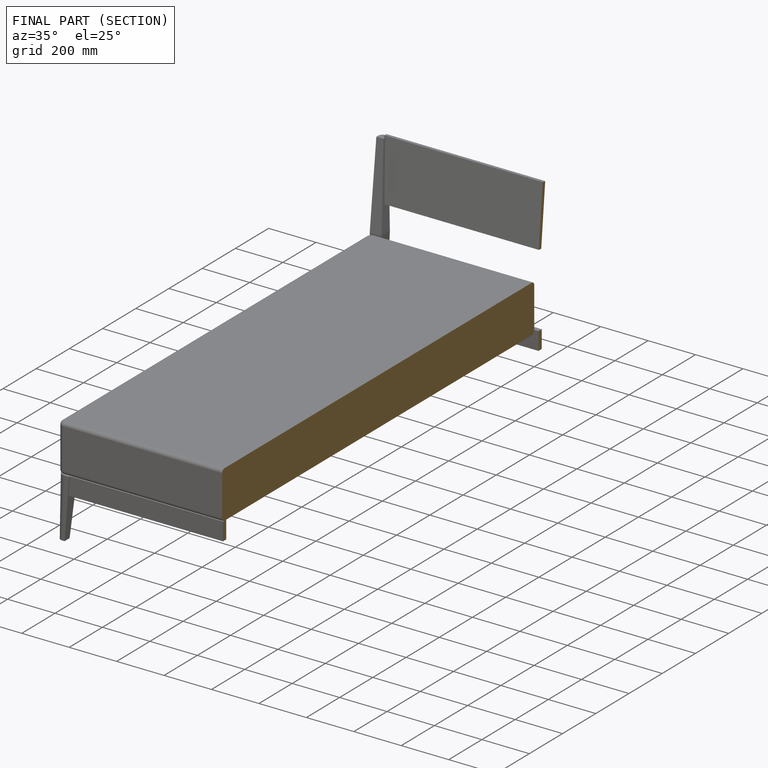
[diagram: finished part — half-section view (interior)]
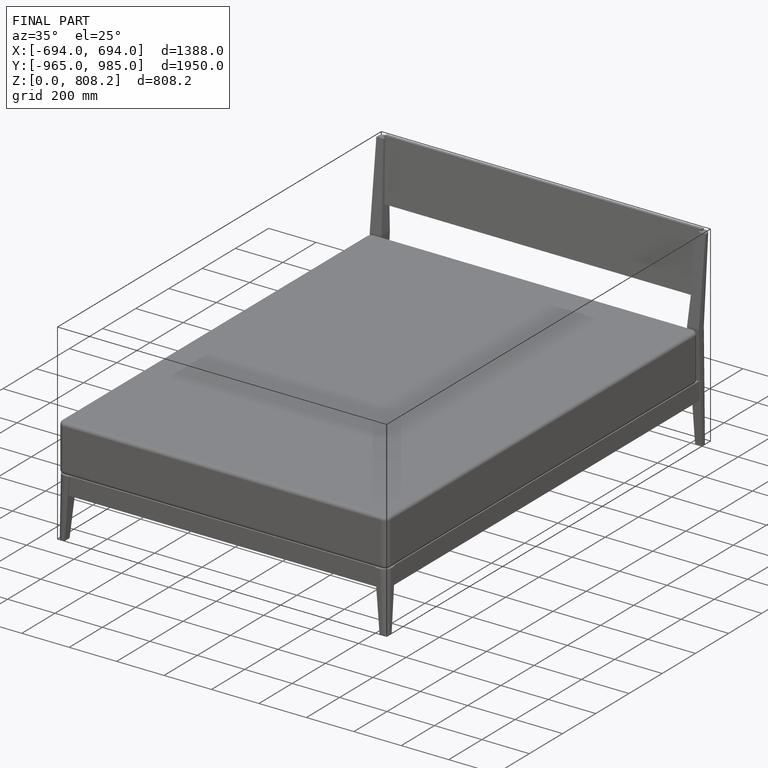
[diagram: finished part — iso view with bounding-box wireframe]
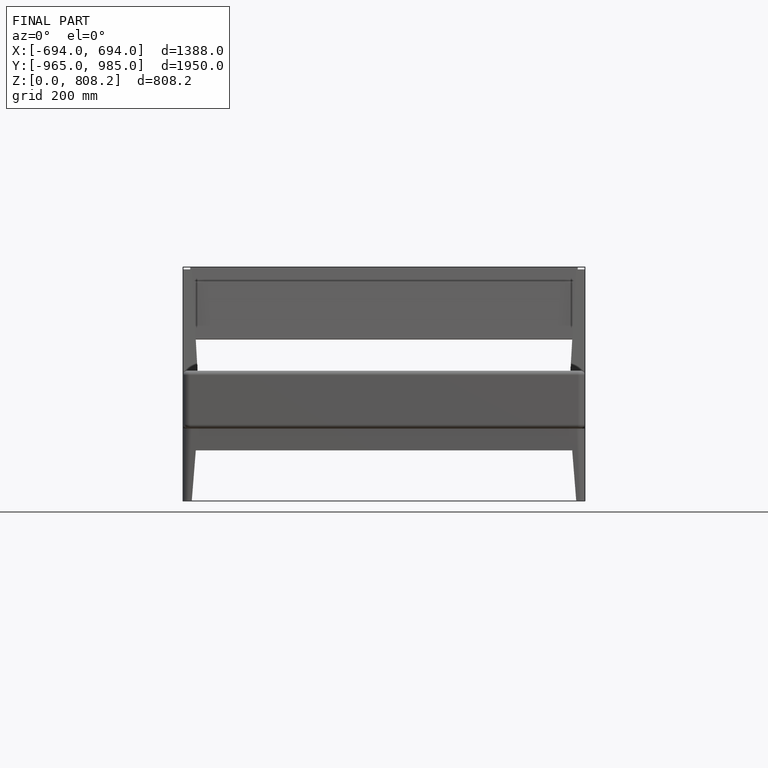
[diagram: finished part — front view with bounding-box wireframe]
